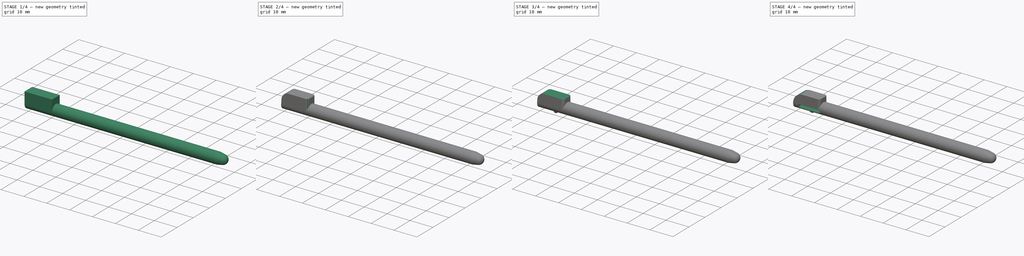
[diagram: build sequence overview — one tinted view per stage of 4, left to right]
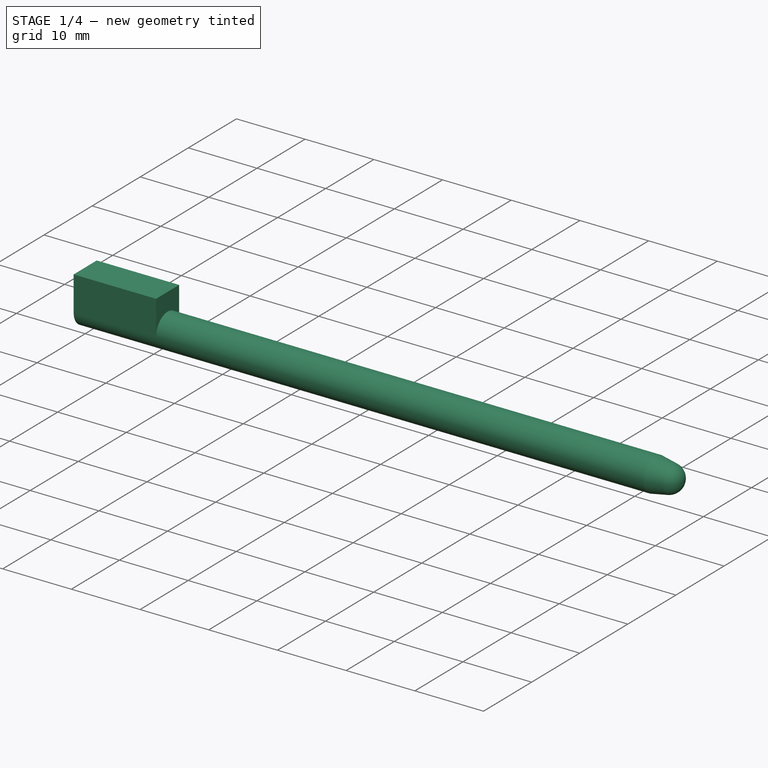
[diagram: stage 1 of 4 — iso view after this stage's code; geometry added in this stage tinted green]
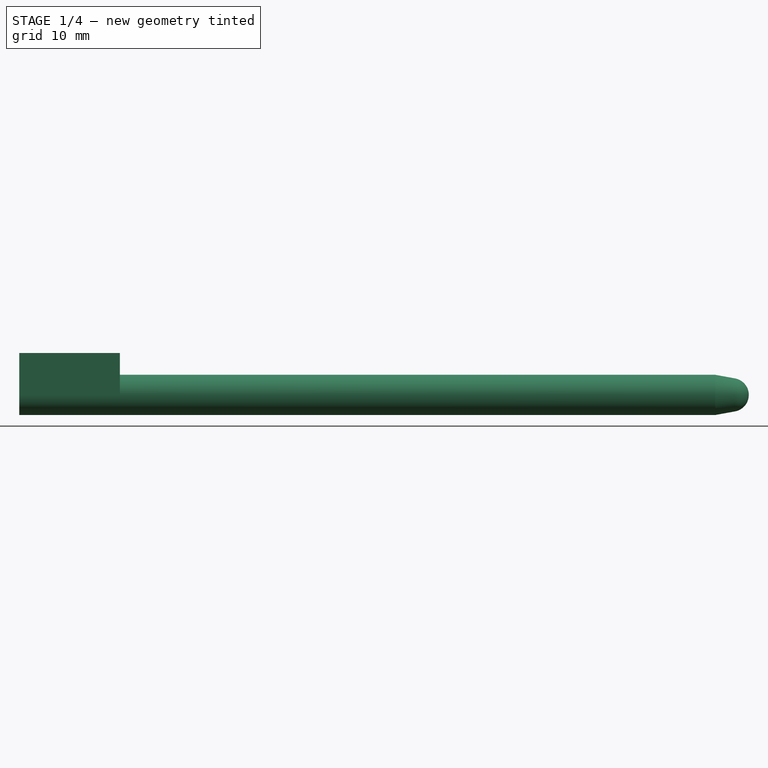
[diagram: stage 1 of 4 — front view after this stage's code; geometry added in this stage tinted green]
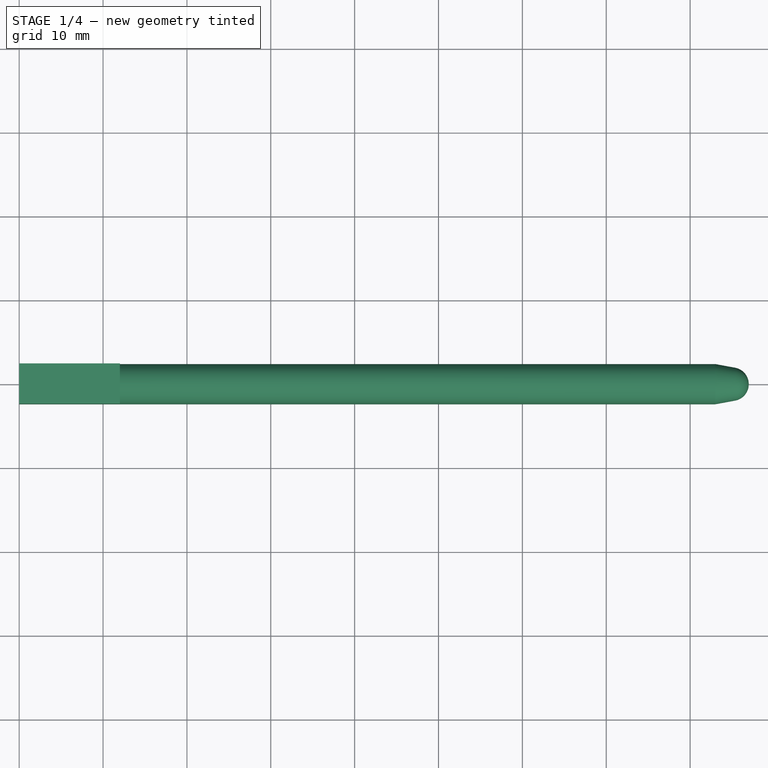
[diagram: stage 1 of 4 — top view after this stage's code; geometry added in this stage tinted green]
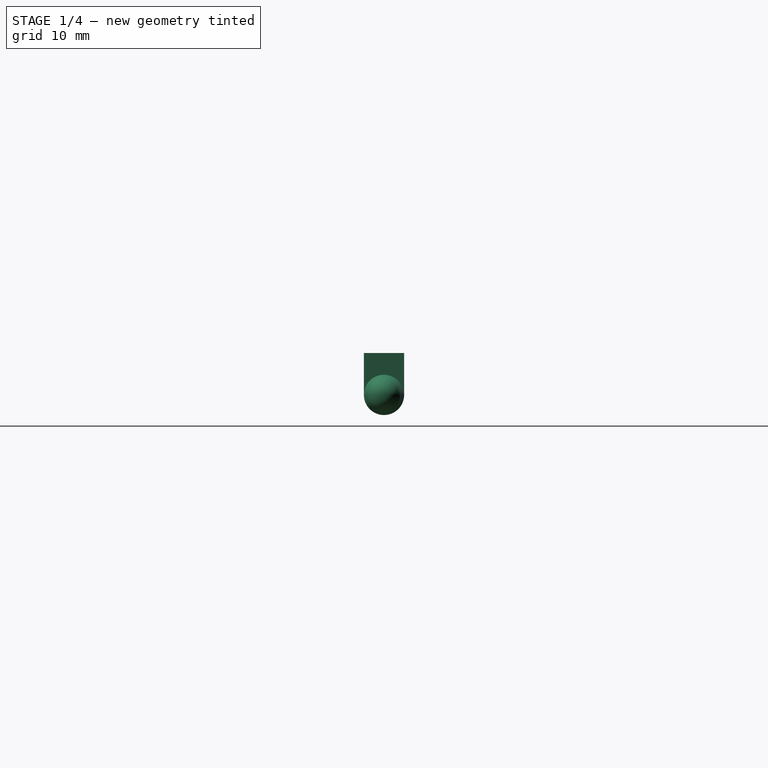
[diagram: stage 1 of 4 — right view after this stage's code; geometry added in this stage tinted green]
FCSTD DOCUMENT  (FreeCAD 1.0R39109 (Git))
Label: DS Lite Stylus
License: Creative Commons Attribution-NonCommercial-ShareAlike
LicenseURL: http://creativecommons.org/licenses/by-nc-sa/4.0/
objects: Sketcher::SketchObject×11, PartDesign::Pocket×6, PartDesign::Pad×4, PartDesign::Groove×1, PartDesign::Body×1
note: 56 computed .brp shape members not serialized (recipe doc carries the construction recipe); baked Part::Feature solids carry a one-line shape summary decoded from their .brp

FEATURE [Sketcher::SketchObject] Sketch
  ArcFitTolerance = 0
  AttachmentSupport = -> [YZ_Plane]
  FullyConstrained = true
  MakeInternals = false
  MapMode = 5
  Placement = pos=(0,0,0) rot=(0.57735,0.57735,0.57735;2.0944rad)
  sketch-geometry (1):
    g0: Circle CenterX=0 CenterY=0 CenterZ=0 NormalX=0 NormalY=0 NormalZ=1 AngleXU=0 Radius=2.4
  constraints (2):
    c: Coincident(g0,g-1)
    c: Diameter(g0) = 4.8
FEATURE [PartDesign::Pad] Pad
  Direction = (1,0,0)
  Length = 87
  Length2 = 10
  Placement = pos=(0,0,0) rot=(0.57735,0.57735,0.57735;2.0944rad)
  Profile = -> Sketch
  ReferenceAxis = -> Sketch [N_Axis]
  Suppressed = false
  Type = 0
FEATURE [Sketcher::SketchObject] Sketch001
  ArcFitTolerance = 0
  AttachmentSupport = -> [XZ_Plane]
  ExternalGeometry = -> [Pad]
  FullyConstrained = true
  MakeInternals = false
  MapMode = 5
  Placement = pos=(0,0,0) rot=(1,0,0;1.5708rad)
  sketch-geometry (7):
    g0: LineSegment StartX=87 StartY=2.4 StartZ=0 EndX=83 EndY=2.4 EndZ=0
    g1: LineSegment StartX=83 StartY=2.4 StartZ=0 EndX=85.3607 EndY=1.96721 EndZ=0
    g2: ArcOfCircle CenterX=85 CenterY=-1.57601e-07 CenterZ=0 NormalX=0 NormalY=0 NormalZ=1 AngleXU=0 Radius=2 StartAngle=7.88006e-08 EndAngle=1.38948
    g3: LineSegment StartX=87 StartY=2.4 StartZ=0 EndX=88 EndY=2.4 EndZ=0
    g4: LineSegment StartX=88 StartY=2.4 StartZ=0 EndX=88 EndY=2.4e-14 EndZ=0
    g5: LineSegment StartX=88 StartY=2.38e-14 StartZ=0 EndX=87 EndY=2.38e-14 EndZ=0
    g6: LineSegment [constr] StartX=83 StartY=2.4 StartZ=0 EndX=83 EndY=0 EndZ=0
  constraints (19):
    c: Coincident(g0,g-3)
    c: Horizontal(g0)
    c: Coincident(g1,g0)
    c: Tangent(g2,g1) = 1.5708
    c: Symmetric(g0,g-3,g2)
    c: Coincident(g3,g0)
    c: Horizontal(g3)
    c: Coincident(g4,g3)
    c: Vertical(g4)
    c: Coincident(g5,g4)
    c: Coincident(g5,g2)
    c: Horizontal(g5)
    c: Distance(g3) = 1
    c: Tangent(g2,g-3)
    c: Coincident(g6,g0)
    c: PointOnObject(g6,g-1)
    c: Vertical(g6)
    c: Distance(g0) = 4
    c: Diameter(g2) = 4
FEATURE [PartDesign::Groove] Groove
  Angle = 360
  Angle2 = 60
  Axis = (1,0,0)
  Base = (0,0,0)
  BaseFeature = -> Pad
  Placement = pos=(0,0,0) rot=(0.57735,0.57735,0.57735;2.0944rad)
  Profile = -> Sketch001
  ReferenceAxis = -> Sketch001 [H_Axis]
  Reversed = true
  Suppressed = false
  Type = 0
FEATURE [Sketcher::SketchObject] Sketch002
  ArcFitTolerance = 0
  AttachmentSupport = -> [XZ_Plane]
  FullyConstrained = true
  MakeInternals = false
  MapMode = 5
  Placement = pos=(0,0,0) rot=(1,0,0;1.5708rad)
  sketch-geometry (4):
    g0: LineSegment StartX=0 StartY=0 StartZ=0 EndX=12 EndY=0 EndZ=0
    g1: LineSegment StartX=12 StartY=0 StartZ=0 EndX=12 EndY=5 EndZ=0
    g2: LineSegment StartX=12 StartY=5 StartZ=0 EndX=0 EndY=5 EndZ=0
    g3: LineSegment StartX=0 StartY=5 StartZ=0 EndX=0 EndY=0 EndZ=0
  constraints (11):
    c: Coincident(g0,g1)
    c: Coincident(g1,g2)
    c: Coincident(g2,g3)
    c: Coincident(g3,g0)
    c: Horizontal(g0)
    c: Horizontal(g2)
    c: Vertical(g1)
    c: Vertical(g3)
    c: Coincident(g0,g-1)
    c: Distance(g2) = 12
    c: Distance(g3) = 5
FEATURE [PartDesign::Pad] Pad001
  BaseFeature = -> Groove
  Direction = (0,-1,2e-16)
  Length = 2.4
  Length2 = 2.4
  Placement = pos=(0,0,0) rot=(0.57735,0.57735,0.57735;2.0944rad)
  Profile = -> Sketch002
  ReferenceAxis = -> Sketch002 [N_Axis]
  Refine = true
  Suppressed = false
  Type = 4
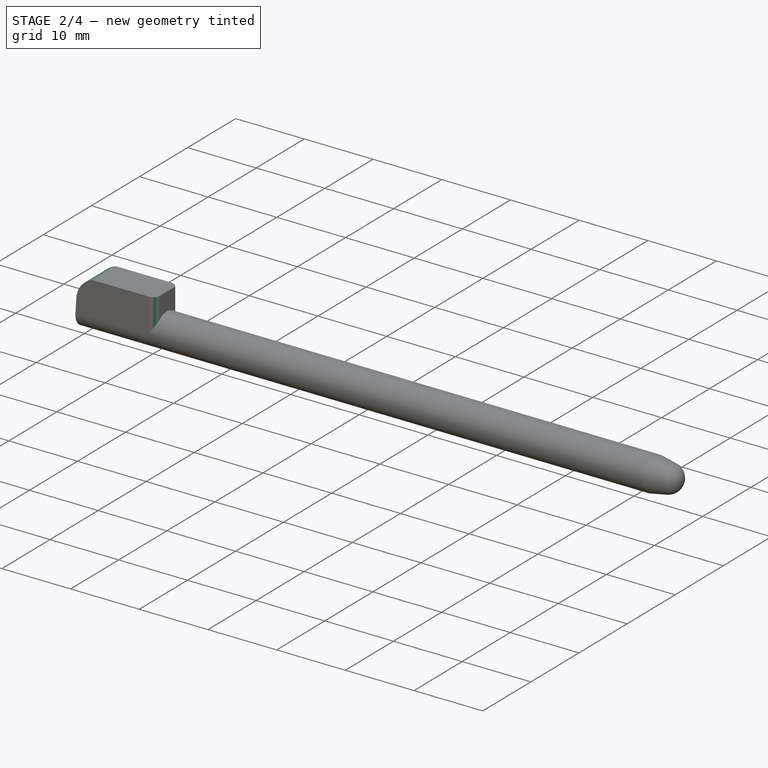
[diagram: stage 2 of 4 — iso view after this stage's code; geometry added in this stage tinted green]
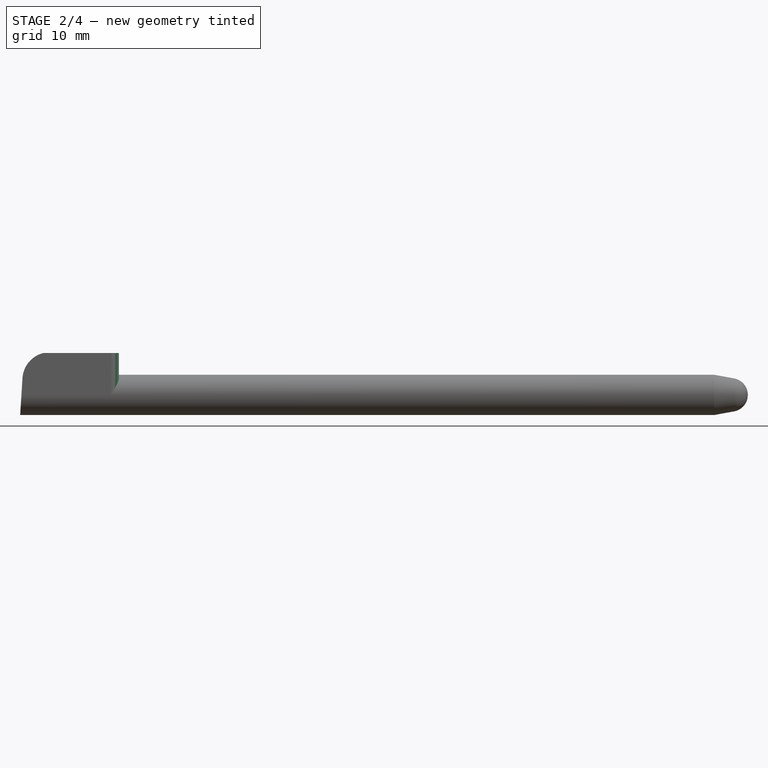
[diagram: stage 2 of 4 — front view after this stage's code; geometry added in this stage tinted green]
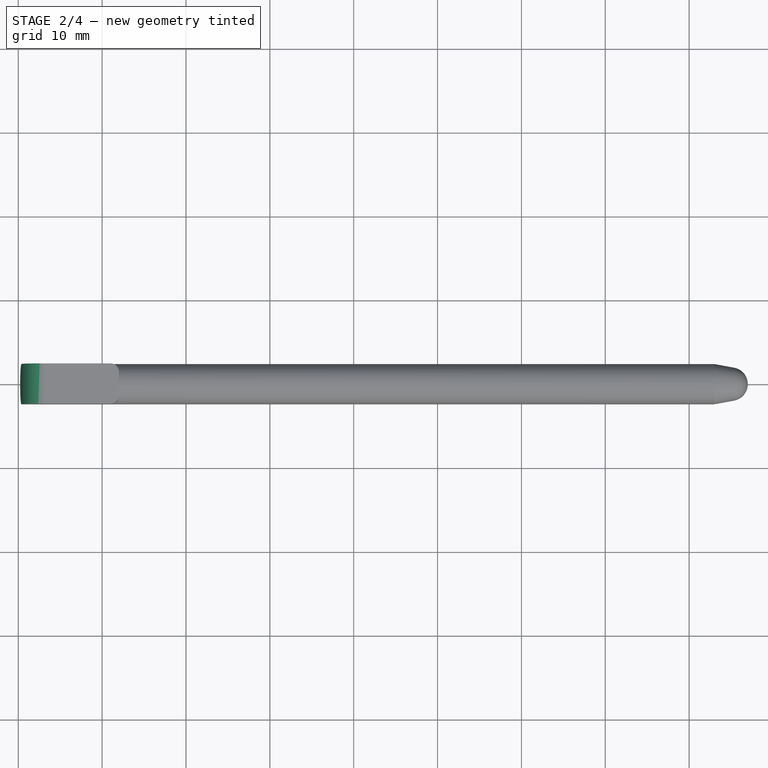
[diagram: stage 2 of 4 — top view after this stage's code; geometry added in this stage tinted green]
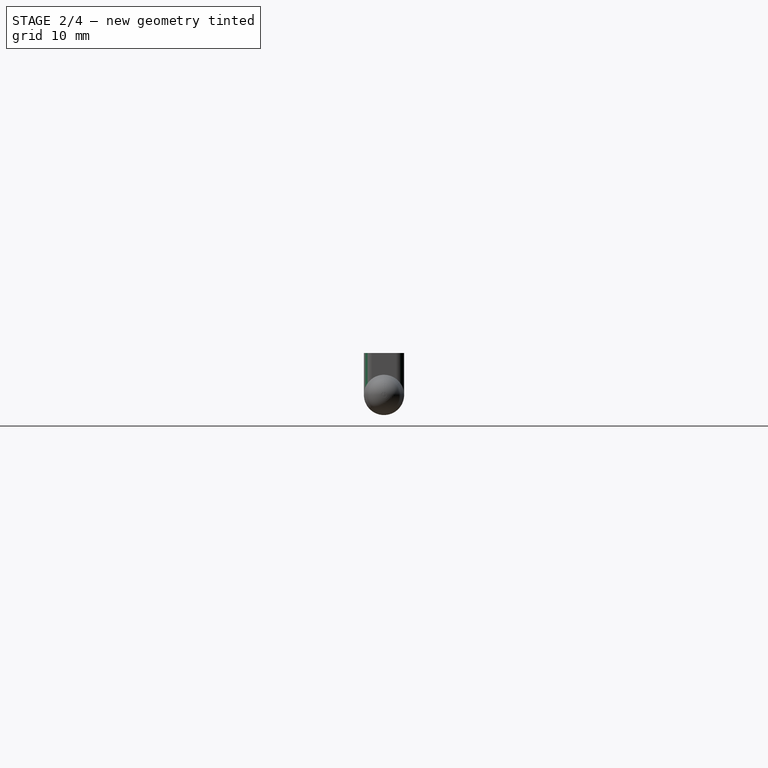
[diagram: stage 2 of 4 — right view after this stage's code; geometry added in this stage tinted green]
FEATURE [Sketcher::SketchObject] Sketch003
  ArcFitTolerance = 0
  AttachmentSupport = -> [Pad001]
  ExternalGeometry = -> [Pad001]
  FullyConstrained = true
  MakeInternals = false
  MapMode = 5
  Placement = pos=(0,-2.4,8e-16) rot=(0.57735,0.57735,-0.57735;2.0944rad)
  sketch-geometry (7):
    g0: LineSegment StartX=-5 StartY=0 StartZ=0 EndX=-5 EndY=3 EndZ=0
    g1: ArcOfCircle CenterX=-1.79392 CenterY=3.7973 CenterZ=0 NormalX=0 NormalY=0 NormalZ=1 AngleXU=0 Radius=3.30373 StartAngle=3.38533 EndAngle=4.64997
    g2: LineSegment [constr] StartX=-2 StartY=0.5 StartZ=0 EndX=-5 EndY=0.5 EndZ=0
    g3: LineSegment StartX=-2 StartY=0.5 StartZ=0 EndX=6 EndY=0 EndZ=0
    g4: LineSegment [constr] StartX=-2 StartY=0.5 StartZ=0 EndX=-2 EndY=0 EndZ=0
    g5: LineSegment StartX=-2 StartY=0 StartZ=0 EndX=6 EndY=0 EndZ=0
    g6: LineSegment StartX=-2 StartY=0 StartZ=0 EndX=-5 EndY=0 EndZ=0
  constraints (19):
    c: Coincident(g0,g-3)
    c: PointOnObject(g0,g-3)
    c: Coincident(g1,g0)
    c: Distance(g0) = 3
    c: Coincident(g2,g1)
    c: PointOnObject(g2,g0)
    c: Horizontal(g2)
    c: Distance(g2) = 3
    c: PointOnObject(g5,g-1)
    c: Coincident(g4,g1)
    c: Distance(g4) = 0.5
    c: Coincident(g5,g4)
    c: Horizontal(g5)
    c: Distance(g5) = 8
    c: Vertical(g4)
    c: Tangent(g3,g1) = -1.5708
    c: Coincident(g3,g5)
    c: Coincident(g6,g5)
    c: Coincident(g6,g0)
FEATURE [PartDesign::Pocket] Pocket
  BaseFeature = -> Pad001
  Direction = (0,1,0)
  Length = 5
  Length2 = 5
  Placement = pos=(0,0,0) rot=(0.57735,0.57735,0.57735;2.0944rad)
  Profile = -> Sketch003
  ReferenceAxis = -> Sketch003 [N_Axis]
  Refine = true
  Suppressed = false
  Type = 0
FEATURE [Sketcher::SketchObject] Sketch004
  ArcFitTolerance = 0
  AttachmentSupport = -> [Pocket]
  ExternalGeometry = -> [Pocket]
  FullyConstrained = true
  MakeInternals = false
  MapMode = 5
  Placement = pos=(-2.2e-15,3.3e-15,5) rot=(0,0,-1;1.5708rad)
  sketch-geometry (6):
    g0: ArcOfCircle CenterX=-1.4 CenterY=11 CenterZ=0 NormalX=0 NormalY=0 NormalZ=1 AngleXU=0 Radius=1 StartAngle=1.5708 EndAngle=3.14159
    g1: ArcOfCircle CenterX=1.4 CenterY=11 CenterZ=0 NormalX=0 NormalY=0 NormalZ=1 AngleXU=0 Radius=1 StartAngle=9e-16 EndAngle=1.5708
    g2: LineSegment StartX=-2.4 StartY=11 StartZ=0 EndX=-2.4 EndY=12 EndZ=0
    g3: LineSegment StartX=-2.4 StartY=12 StartZ=0 EndX=-1.4 EndY=12 EndZ=0
    g4: LineSegment StartX=2.4 StartY=12 StartZ=0 EndX=2.4 EndY=11 EndZ=0
    g5: LineSegment StartX=2.4 StartY=12 StartZ=0 EndX=1.4 EndY=12 EndZ=0
  constraints (14):
    c: Radius(g1) = 1
    c: Radius(g0) = 1
    c: PointOnObject(g1,g-4)
    c: Coincident(g2,g-3)
    c: Coincident(g3,g2)
    c: Tangent(g3,g0) = 1.5708
    c: Tangent(g2,g0) = 1.5708
    c: PointOnObject(g0,g-3)
    c: Horizontal(g3)
    c: Coincident(g4,g-4)
    c: Coincident(g5,g4)
    c: Horizontal(g5)
    c: Tangent(g5,g1) = -1.5708
    c: Tangent(g4,g1) = 1.5708
FEATURE [PartDesign::Pocket] Pocket001
  BaseFeature = -> Pocket
  Direction = (0,0,-1)
  Length = 5
  Length2 = 5
  Placement = pos=(0,0,0) rot=(0.57735,0.57735,0.57735;2.0944rad)
  Profile = -> Sketch004
  ReferenceAxis = -> Sketch004 [N_Axis]
  Suppressed = false
  Type = 0
FEATURE [Sketcher::SketchObject] Sketch005
  ArcFitTolerance = 0
  AttachmentSupport = -> [Pocket001]
  ExternalGeometry = -> [Pocket001]
  FullyConstrained = true
  MakeInternals = false
  MapMode = 5
  Placement = pos=(12,2.7e-15,4e-15) rot=(0.57735,0.57735,-0.57735;4.18879rad)
  sketch-geometry (1):
    g0: Circle CenterX=-6e-15 CenterY=0 CenterZ=0 NormalX=0 NormalY=0 NormalZ=1 AngleXU=0 Radius=2.4
  constraints (2):
    c: Equal(g0,g-3)
    c: Coincident(g-3,g0)
FEATURE [PartDesign::Pad] Pad002
  BaseFeature = -> Pocket001
  Direction = (-1,0,0)
  Length = 6
  Length2 = 10
  Placement = pos=(0,0,0) rot=(0.57735,0.57735,0.57735;2.0944rad)
  Profile = -> Sketch005
  ReferenceAxis = -> Sketch005 [N_Axis]
  Refine = true
  Suppressed = false
  Type = 0
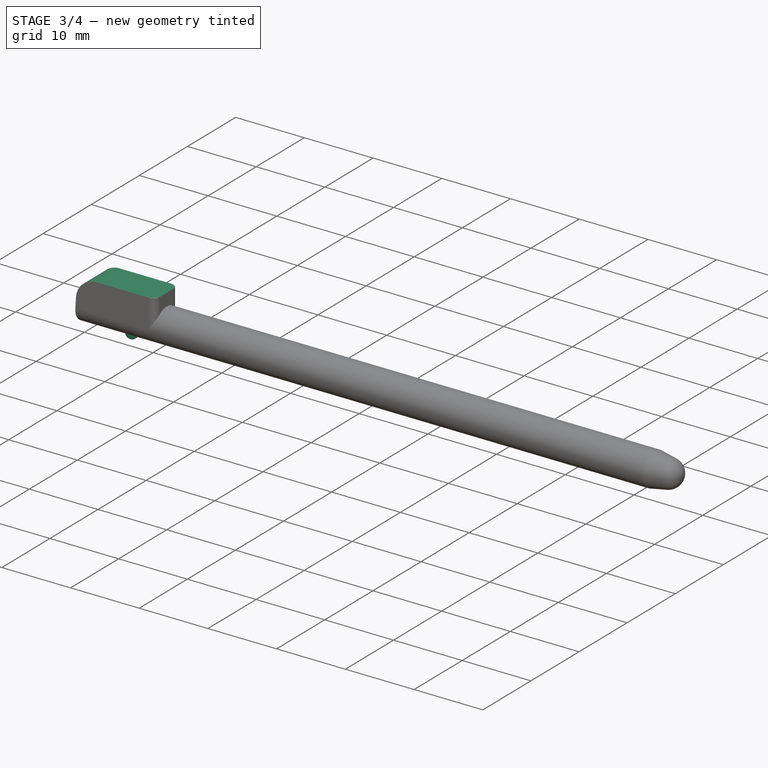
[diagram: stage 3 of 4 — iso view after this stage's code; geometry added in this stage tinted green]
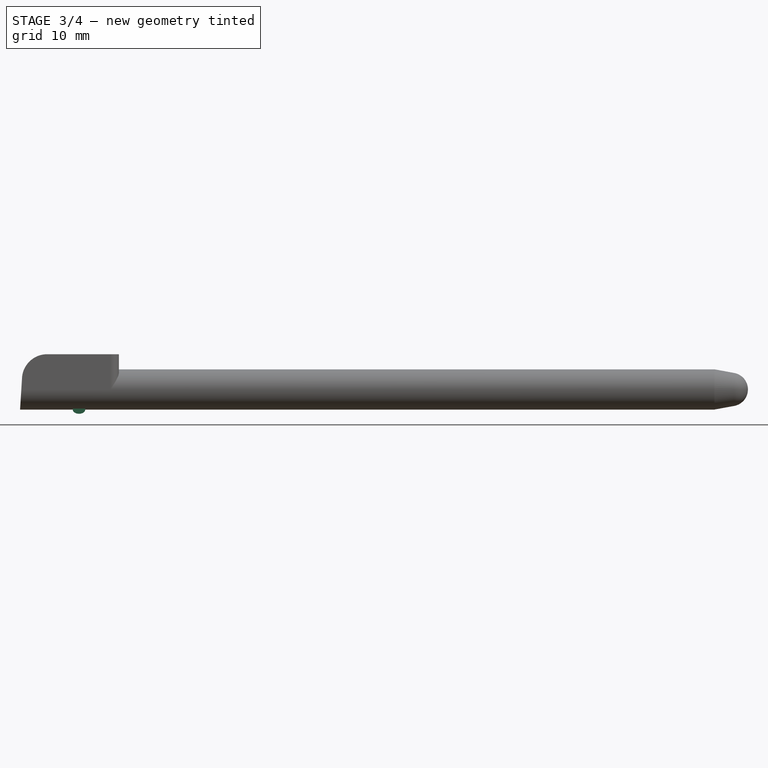
[diagram: stage 3 of 4 — front view after this stage's code; geometry added in this stage tinted green]
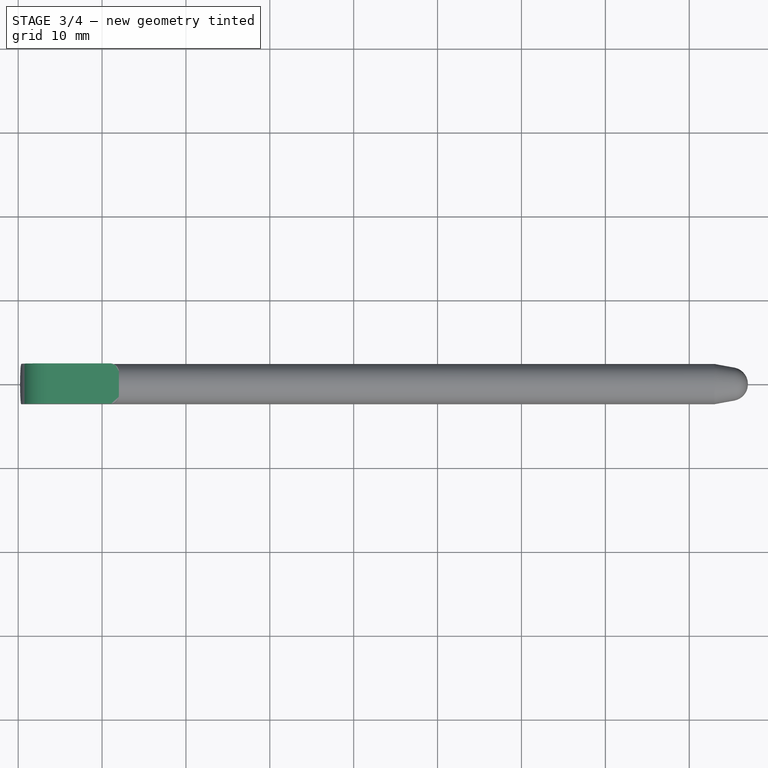
[diagram: stage 3 of 4 — top view after this stage's code; geometry added in this stage tinted green]
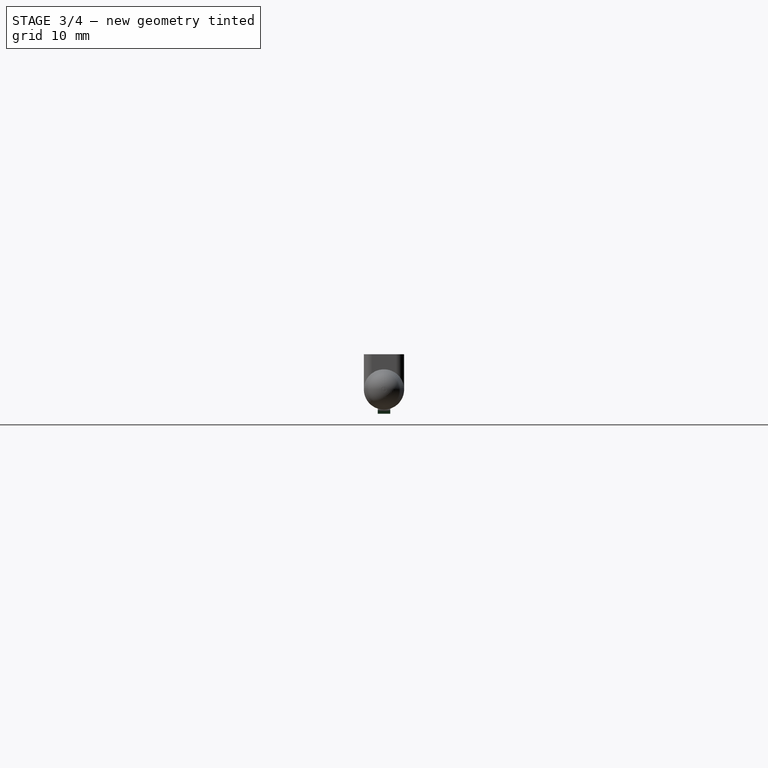
[diagram: stage 3 of 4 — right view after this stage's code; geometry added in this stage tinted green]
FEATURE [Sketcher::SketchObject] Sketch006
  ArcFitTolerance = 0
  AttachmentSupport = -> [XZ_Plane]
  ExternalGeometry = -> [Pad002]
  FullyConstrained = true
  MakeInternals = false
  MapMode = 5
  Placement = pos=(0,0,0) rot=(1,0,0;1.5708rad)
  sketch-geometry (8):
    g0: LineSegment [constr] StartX=0 StartY=0 StartZ=0 EndX=8 EndY=0 EndZ=0
    g1: LineSegment [constr] StartX=8 StartY=0 StartZ=0 EndX=8 EndY=-2.4 EndZ=0
    g2: Ellipse CenterX=7.25 CenterY=-2.4 CenterZ=0 NormalX=0 NormalY=0 NormalZ=1 MajorRadius=0.75 MinorRadius=0.5 AngleXU=0
    g3: LineSegment [constr] StartX=8 StartY=-2.4 StartZ=0 EndX=6.5 EndY=-2.4 EndZ=0
    g4: LineSegment [constr] StartX=7.25 StartY=-1.9 StartZ=0 EndX=7.25 EndY=-2.9 EndZ=0
    g5: GeomPoint [constr] X=7.80902 Y=-2.4 Z=0
    g6: GeomPoint [constr] X=6.69098 Y=-2.4 Z=0
    g7: LineSegment [constr] StartX=0.225 StartY=-2.4 StartZ=0 EndX=6.5 EndY=-2.4 EndZ=0
  constraints (13):
    c: Coincident(g0,g-1)
    c: Horizontal(g0)
    c: Distance(g0) = 8
    c: Coincident(g1,g0)
    c: Vertical(g1)
    c: InternalAlignment(g3-g6 -> g2) x4
    c: Coincident(g3,g1)
    c: Horizontal(g3)
    c: Coincident(g7,g3)
    c: Horizontal(g7)
    c: Distance(g3) = 1.5
    c: Distance(g4) = 1
    c: Coincident(g7,g-3)
FEATURE [PartDesign::Pad] Pad003
  BaseFeature = -> Pad002
  Direction = (0,-1,2e-16)
  Length = 0.75
  Length2 = 0.75
  Placement = pos=(0,0,0) rot=(0.57735,0.57735,0.57735;2.0944rad)
  Profile = -> Sketch006
  ReferenceAxis = -> Sketch006 [N_Axis]
  Suppressed = false
  Type = 4
FEATURE [Sketcher::SketchObject] Sketch007
  ArcFitTolerance = 0
  AttachmentSupport = -> [Pad003]
  ExternalGeometry = -> [Pad003]
  FullyConstrained = true
  MakeInternals = false
  MapMode = 5
  Placement = pos=(0,-2.4,4e-15) rot=(0.57735,0.57735,-0.57735;2.0944rad)
  sketch-geometry (9):
    g0: LineSegment [constr] StartX=-2.4 StartY=0.525 StartZ=0 EndX=2.4 EndY=0.225 EndZ=0
    g1: ArcOfCircle CenterX=-1.2 CenterY=3.45585 CenterZ=0 NormalX=0 NormalY=0 NormalZ=1 AngleXU=0 Radius=3 StartAngle=3.14159 EndAngle=4.64997
    g2: LineSegment [constr] StartX=2.4 StartY=0.225 StartZ=0 EndX=2.4 EndY=12 EndZ=0
    g3: LineSegment [constr] StartX=-5 StartY=12 StartZ=0 EndX=2.4 EndY=12 EndZ=0
    g4: LineSegment StartX=-4.2 StartY=3.45585 StartZ=0 EndX=-4.2 EndY=12 EndZ=0
    g5: LineSegment StartX=-4.2 StartY=12 StartZ=0 EndX=-5 EndY=12 EndZ=0
    g6: LineSegment StartX=-5 StartY=12 StartZ=0 EndX=-5 EndY=0.461696 EndZ=0
    g7: LineSegment StartX=-5 StartY=0.461696 StartZ=0 EndX=-1.38713 EndY=0.461696 EndZ=0
    g8: LineSegment [constr] StartX=-4.2 StartY=3.45585 StartZ=0 EndX=0 EndY=3.45585 EndZ=0
  constraints (23):
    c: Coincident(g0,g-3)
    c: Coincident(g0,g-3)
    c: Radius(g1) = 3
    c: Coincident(g2,g0)
    c: Vertical(g2)
    c: Coincident(g3,g-4)
    c: Coincident(g3,g2)
    c: Horizontal(g3)
    c: Tangent(g1,g0) = -1.5708
    c: PointOnObject(g4,g3)
    c: Vertical(g4)
    c: Coincident(g5,g4)
    c: Coincident(g5,g3)
    c: Coincident(g6,g5)
    c: Vertical(g6)
    c: Coincident(g7,g6)
    c: Coincident(g7,g1)
    c: Horizontal(g7)
    c: Tangent(g4,g1) = 1.5708
    c: Coincident(g8,g1)
    c: Horizontal(g8)
    c: PointOnObject(g8,g-2)
    c: Distance(g8) = 4.2
FEATURE [PartDesign::Pocket] Pocket002
  BaseFeature = -> Pad003
  Direction = (1e-16,1,-1.4e-15)
  Length = 5
  Length2 = 5
  Placement = pos=(0,0,0) rot=(0.57735,0.57735,0.57735;2.0944rad)
  Profile = -> Sketch007
  ReferenceAxis = -> Sketch007 [N_Axis]
  Suppressed = false
  Type = 0
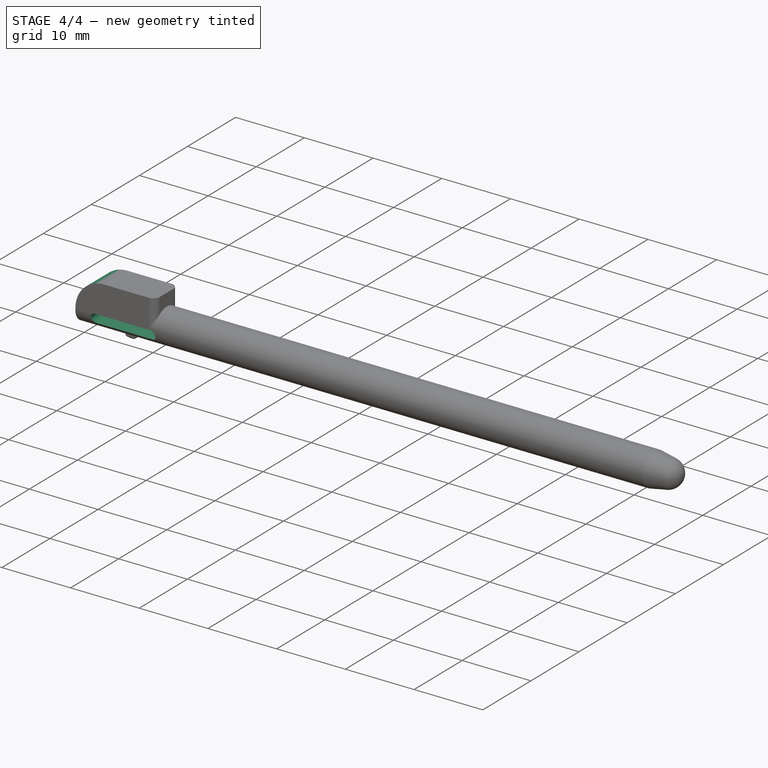
[diagram: stage 4 of 4 — iso view after this stage's code; geometry added in this stage tinted green]
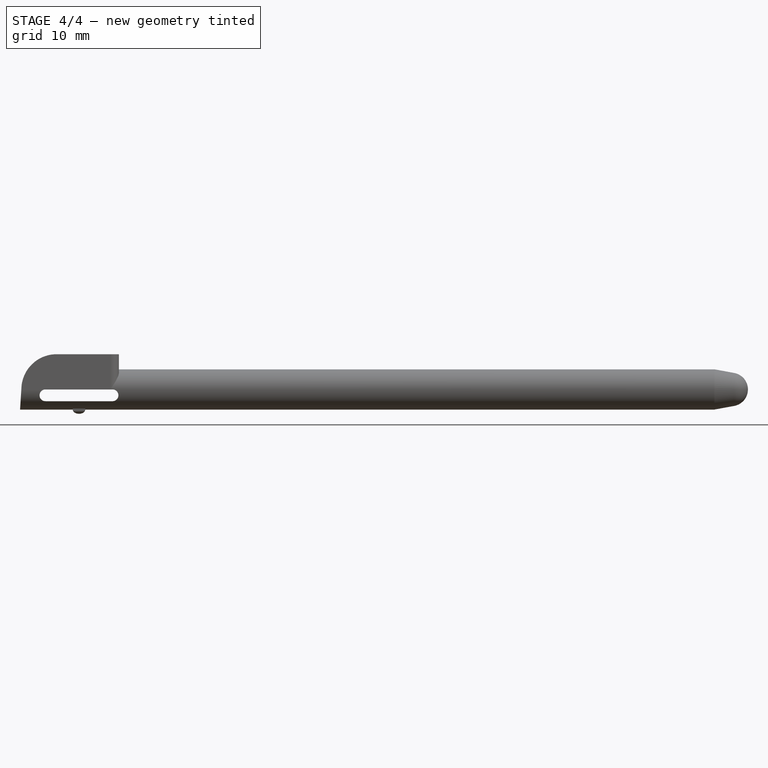
[diagram: stage 4 of 4 — front view after this stage's code; geometry added in this stage tinted green]
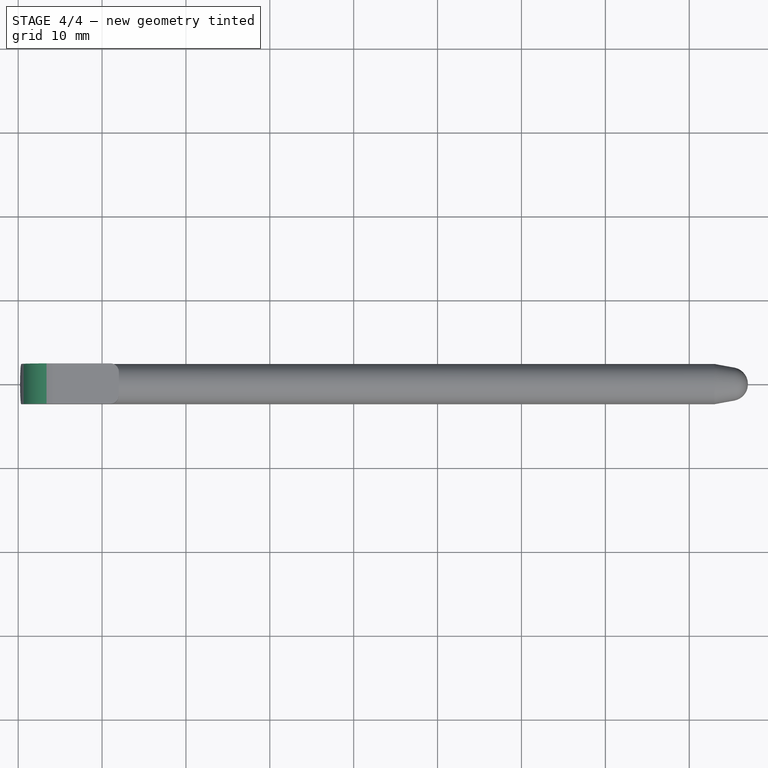
[diagram: stage 4 of 4 — top view after this stage's code; geometry added in this stage tinted green]
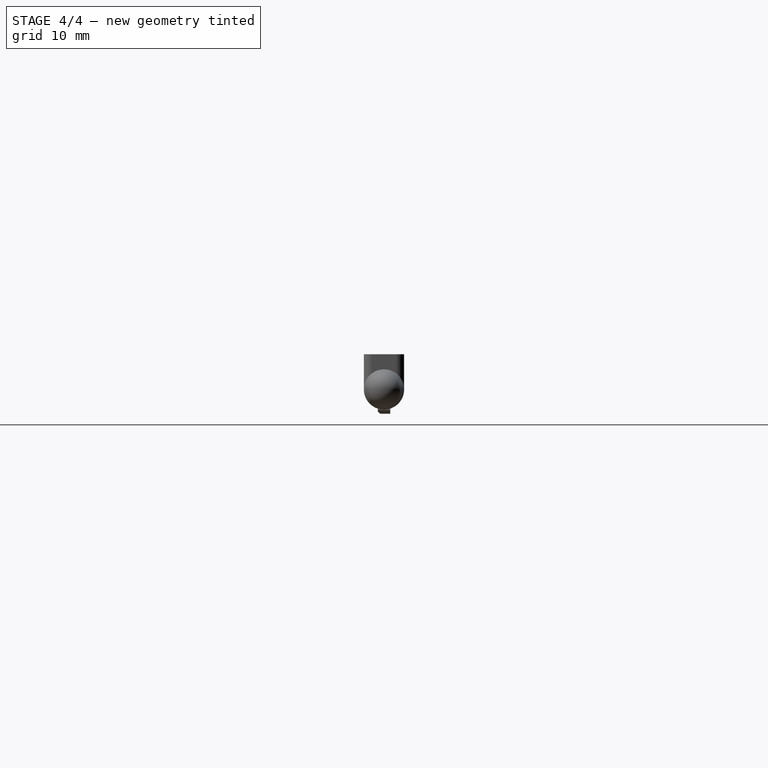
[diagram: stage 4 of 4 — right view after this stage's code; geometry added in this stage tinted green]
FEATURE [Sketcher::SketchObject] Sketch008
  ArcFitTolerance = 0
  AttachmentSupport = -> [Pocket002]
  ExternalGeometry = -> [Pocket002]
  FullyConstrained = true
  MakeInternals = false
  MapMode = 5
  Placement = pos=(0,-2.4,4.8e-15) rot=(0.57735,0.57735,-0.57735;2.0944rad)
  sketch-geometry (4):
    g0: Circle [constr] CenterX=-3e-16 CenterY=4.5832 CenterZ=0 NormalX=0 NormalY=0 NormalZ=1 AngleXU=0 Radius=4.2
    g1: ArcOfCircle CenterX=-3e-16 CenterY=4.5832 CenterZ=0 NormalX=0 NormalY=0 NormalZ=1 AngleXU=0 Radius=4.2 StartAngle=3.14159 EndAngle=4.64997
    g2: LineSegment StartX=-4.2 StartY=4.58319 StartZ=0 EndX=-4.2 EndY=0.6375 EndZ=0
    g3: LineSegment StartX=-0.261987 StartY=0.391374 StartZ=0 EndX=-4.2 EndY=0.6375 EndZ=0
  constraints (12):
    c: Tangent(g0,g-4)
    c: Tangent(g0,g-3)
    c: Radius(g0) = 4.2
    c: Coincident(g1,g0)
    c: PointOnObject(g1,g-3)
    c: PointOnObject(g1,g-4)
    c: Equal(g1,g0)
    c: Coincident(g2,g1)
    c: Vertical(g2)
    c: Coincident(g3,g1)
    c: Coincident(g3,g2)
    c: PointOnObject(g-3,g3)
FEATURE [PartDesign::Pocket] Pocket003
  BaseFeature = -> Pocket002
  Direction = (1e-16,1,-1.9e-15)
  Length = 5
  Length2 = 5
  Placement = pos=(0,0,0) rot=(0.57735,0.57735,0.57735;2.0944rad)
  Profile = -> Sketch008
  ReferenceAxis = -> Sketch008 [N_Axis]
  Suppressed = false
  Type = 0
FEATURE [Sketcher::SketchObject] Sketch009
  ArcFitTolerance = 0
  AttachmentSupport = -> [Pocket003]
  ExternalGeometry = -> [Pocket003]
  FullyConstrained = true
  MakeInternals = false
  MapMode = 5
  Placement = pos=(0,-2.4,5.6e-15) rot=(0.57735,0.57735,-0.57735;2.0944rad)
  sketch-geometry (6):
    g0: LineSegment [constr] StartX=2.2798 StartY=7.25 StartZ=0 EndX=-3.6e-15 EndY=7.25 EndZ=0
    g1: ArcOfCircle CenterX=0.7 CenterY=3.25 CenterZ=0 NormalX=0 NormalY=0 NormalZ=1 AngleXU=0 Radius=0.7 StartAngle=3.14159 EndAngle=6.28319
    g2: ArcOfCircle CenterX=0.7 CenterY=11.25 CenterZ=0 NormalX=0 NormalY=0 NormalZ=1 AngleXU=0 Radius=0.7 StartAngle=1.6e-15 EndAngle=3.14159
    g3: LineSegment StartX=1.4 StartY=3.25 StartZ=0 EndX=1.4 EndY=11.25 EndZ=0
    g4: LineSegment StartX=-5.7e-15 StartY=11.25 StartZ=0 EndX=-1.7e-15 EndY=3.25 EndZ=0
    g5: LineSegment [constr] StartX=-1.7e-15 StartY=3.25 StartZ=0 EndX=1.4 EndY=3.25 EndZ=0
  constraints (14):
    c: PointOnObject(g0,g-3)
    c: Horizontal(g0)
    c: Tangent(g1,g3) = -1.5708
    c: Tangent(g3,g2) = -1.5708
    c: Tangent(g2,g4) = -1.5708
    c: Tangent(g4,g1) = -1.5708
    c: Equal(g1,g2)
    c: Distance(g3) = 8
    c: Coincident(g5,g1)
    c: Coincident(g5,g1)
    c: Distance(g5) = 1.4
    c: PointOnObject(g2,g-3)
    c: Symmetric(g2,g1,g0)
    c: Symmetric(g-4,g-4,g0)
FEATURE [PartDesign::Pocket] Pocket004
  BaseFeature = -> Pocket003
  Direction = (0,1,-2.2e-15)
  Length = 10
  Length2 = 5
  Placement = pos=(0,0,0) rot=(0.57735,0.57735,0.57735;2.0944rad)
  Profile = -> Sketch009
  ReferenceAxis = -> Sketch009 [N_Axis]
  Suppressed = false
  Type = 0
FEATURE [Sketcher::SketchObject] Sketch010
  ArcFitTolerance = 0
  AttachmentSupport = -> [YZ_Plane]
  ExternalGeometry = -> [Pocket004]
  FullyConstrained = true
  MakeInternals = false
  MapMode = 5
  Placement = pos=(0,0,0) rot=(0.57735,0.57735,0.57735;2.0944rad)
  sketch-geometry (7):
    g0: LineSegment [constr] StartX=-0.75 StartY=-2.9 StartZ=0 EndX=0.75 EndY=-2.9 EndZ=0
    g1: LineSegment [constr] StartX=-1.53673 StartY=-1.84349 StartZ=0 EndX=-0.75 EndY=-2.61917 EndZ=0
    g2: LineSegment [constr] StartX=-0.75 StartY=-2.61917 StartZ=0 EndX=-0.465163 EndY=-2.9 EndZ=0
    g3: LineSegment [constr] StartX=-1.53673 StartY=-1.84349 StartZ=0 EndX=-1.82156 EndY=-1.56266 EndZ=0
    g4: LineSegment StartX=-1.82156 StartY=-1.56266 StartZ=0 EndX=-0.465163 EndY=-2.9 EndZ=0
    g5: LineSegment StartX=-1.82156 StartY=-1.56266 StartZ=0 EndX=-1.82156 EndY=-2.9 EndZ=0
    g6: LineSegment StartX=-1.82156 StartY=-2.9 StartZ=0 EndX=-0.465163 EndY=-2.9 EndZ=0
  constraints (19):
    c: Coincident(g2,g1)
    c: PointOnObject(g2,g0)
    c: Parallel(g1,g2)
    c: Distance(g2) = 0.4
    c: Coincident(g3,g1)
    c: PointOnObject(g3,g-3)
    c: Distance(g3) = 0.4
    c: PointOnObject(g1,g-3)
    c: Parallel(g3,g1)
    c: Coincident(g4,g3)
    c: Coincident(g4,g2)
    c: Coincident(g5,g4)
    c: Vertical(g5)
    c: Coincident(g6,g5)
    c: Coincident(g6,g4)
    c: Horizontal(g6)
    c: Coincident(g0,g-4)
    c: Coincident(g0,g-5)
    c: PointOnObject(g1,g-4)
FEATURE [PartDesign::Pocket] Pocket005
  BaseFeature = -> Pocket004
  Direction = (-1,0,0)
  Length = 100
  Length2 = 100
  Placement = pos=(0,0,0) rot=(0.57735,0.57735,0.57735;2.0944rad)
  Profile = -> Sketch010
  ReferenceAxis = -> Sketch010 [N_Axis]
  Suppressed = false
  Type = 4
FEATURE [PartDesign::Body] Body  label="Nintendo DS Lite Stylus"
  AllowCompound = false
  Group = -> [Sketch,Pad,Sketch001,Groove,Sketch002,Pad001,Sketch003,Pocket,Sketch004,Pocket001,Sketch005,Pad002,Sketch006,Pad003,Sketch007,Pocket002,Sketch008,Pocket003,Sketch009,Pocket004,Sketch010,Pocket005]
  Origin = -> Origin
  Placement = pos=(0,0,0) rot=(1,0,0;0.778242rad)
  Tip = -> Pocket005
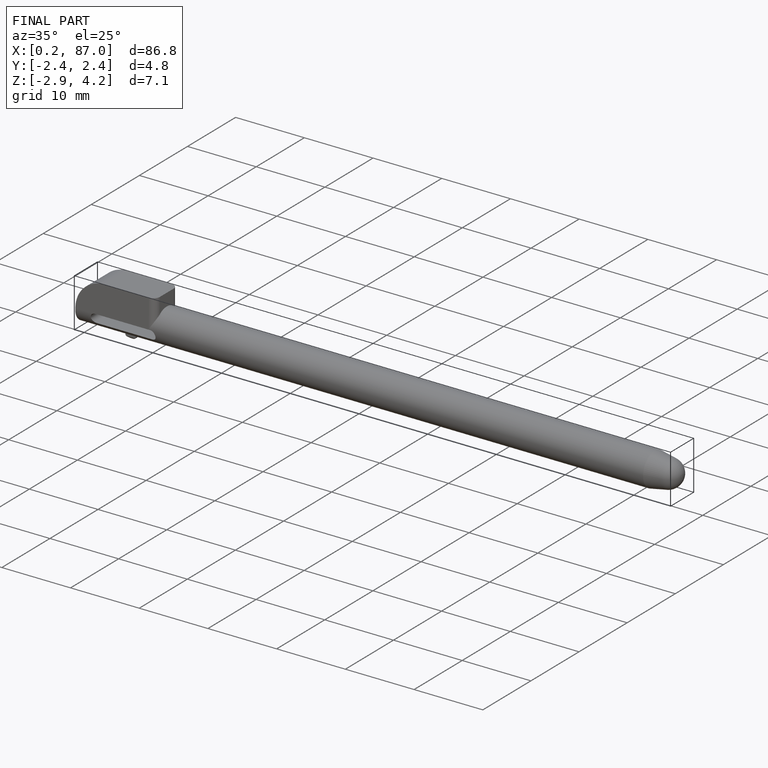
[diagram: finished part — iso view with bounding-box wireframe]
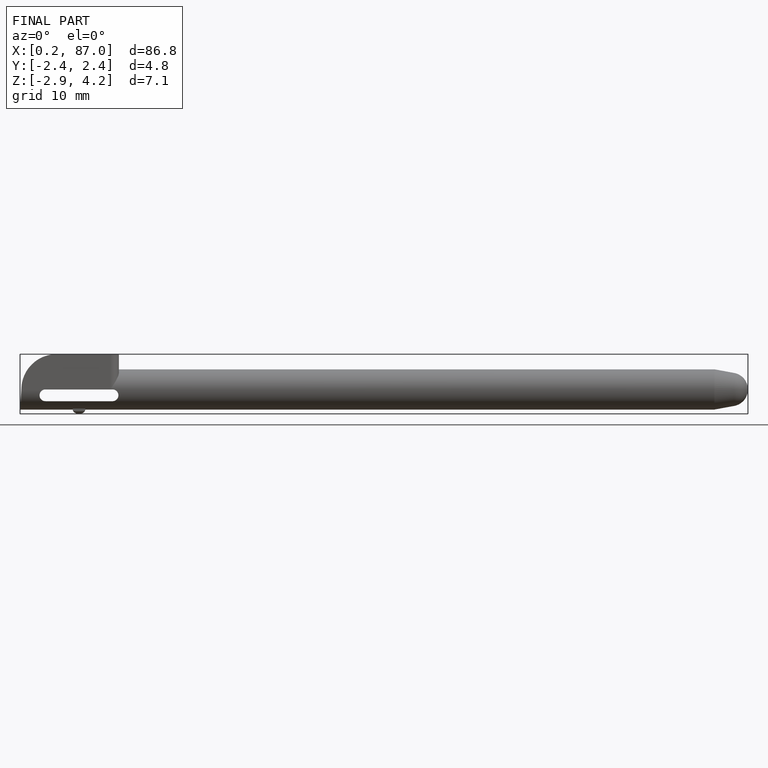
[diagram: finished part — front view with bounding-box wireframe]
